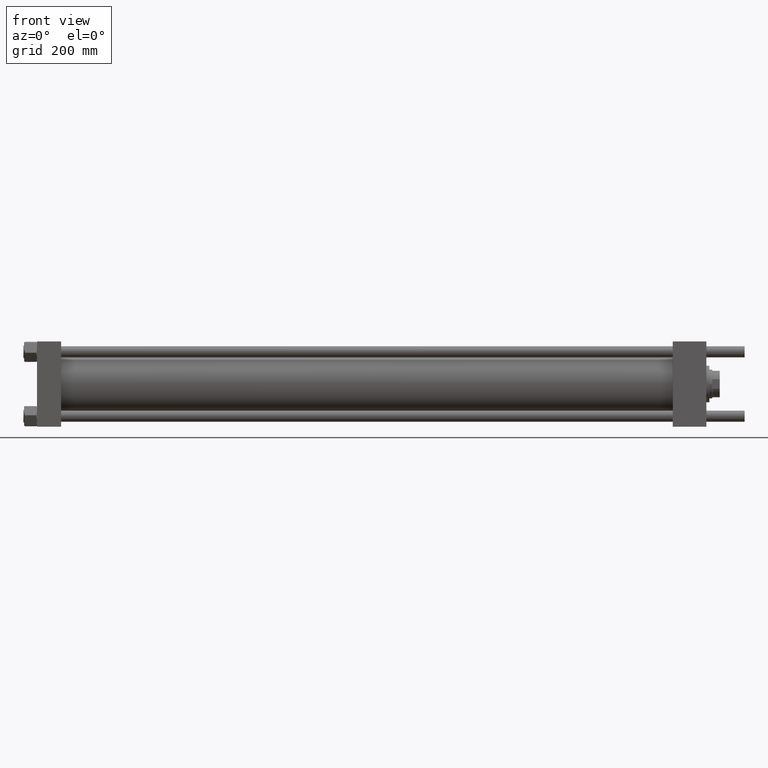
[diagram: clean part render]
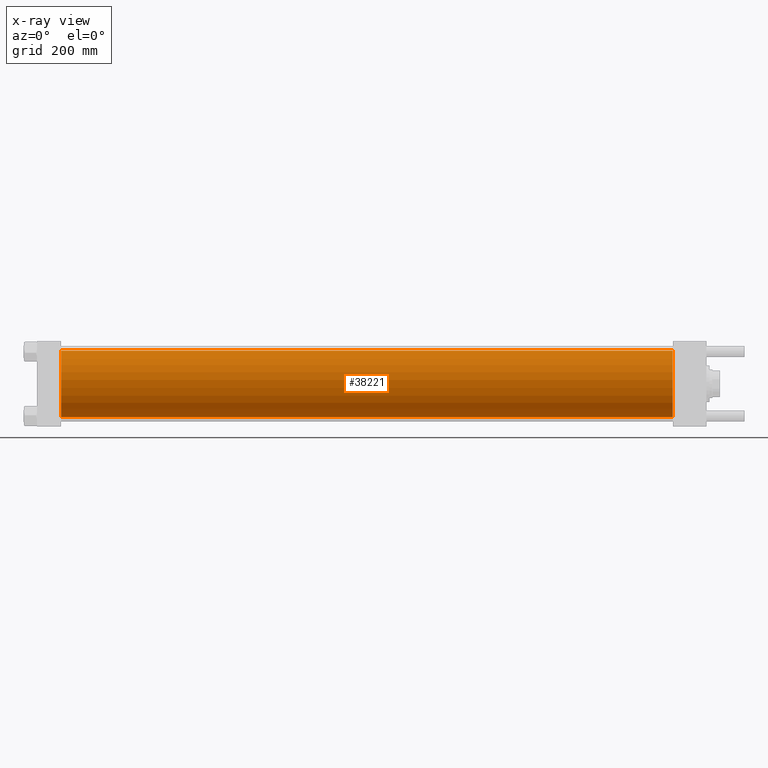
[diagram: x-ray — body ghosted, one internal face saturated and labeled with its STEP entity id]
A machine part, front view, then the same camera in x-ray: the body is ghosted and one INTERNAL B-rep face — a face not visible from any outside direction — is saturated and labeled: STEP entity #38221.
In plain terms, the highlighted cylindrical surface (edge-blend (fillet) strip) has radius 80 mm, axis along (-1, -0, -0).
Its self-contained STEP definition (entity closure, byte-faithful):
#784 = DIRECTION ( 'NONE',  ( -1.000000000000000000, -0.000000000000000000, -0.000000000000000000 ) ) ;
#1503 = ORIENTED_EDGE ( 'NONE', *, *, #21273, .F. ) ;
#1624 = AXIS2_PLACEMENT_3D ( 'NONE', #18889, #54190, #14540 ) ;
#8583 = ORIENTED_EDGE ( 'NONE', *, *, #13088, .F. ) ;
#10968 = EDGE_CURVE ( 'NONE', #39233, #15771, #19294, .T. ) ;
#12043 = VERTEX_POINT ( 'NONE', #34629 ) ;
#12673 = LINE ( 'NONE', #25718, #15112 ) ;
#13088 = EDGE_CURVE ( 'NONE', #50898, #12043, #12673, .T. ) ;
#13495 = CIRCLE ( 'NONE', #56011, 80.00000000000000000 ) ;
#14540 = DIRECTION ( 'NONE',  ( 0.000000000000000000, 0.000000000000000000, -1.000000000000000000 ) ) ;
#15112 = VECTOR ( 'NONE', #43366, 1000.000000000000000 ) ;
#15771 = VERTEX_POINT ( 'NONE', #49911 ) ;
#17698 = DIRECTION ( 'NONE',  ( 0.000000000000000000, 0.000000000000000000, -1.000000000000000000 ) ) ;
#18889 = CARTESIAN_POINT ( 'NONE',  ( 1530.000000000000000, -2.602085213965210642E-15, 0.000000000000000000 ) ) ;
#19294 = LINE ( 'NONE', #28564, #43844 ) ;
#21273 = EDGE_CURVE ( 'NONE', #12043, #15771, #13495, .T. ) ;
#22035 = CARTESIAN_POINT ( 'NONE',  ( 58.00000000000000000, -2.602085213965210642E-15, 0.000000000000000000 ) ) ;
#25718 = CARTESIAN_POINT ( 'NONE',  ( 1530.000000000000000, -2.602085213965210642E-15, 80.00000000000000000 ) ) ;
#27182 = DIRECTION ( 'NONE',  ( 0.000000000000000000, 0.000000000000000000, 1.000000000000000000 ) ) ;
#27929 = CARTESIAN_POINT ( 'NONE',  ( 1530.000000000000000, 7.195089179213615410E-15, -80.00000000000000000 ) ) ;
#28564 = CARTESIAN_POINT ( 'NONE',  ( 1530.000000000000000, 7.195089179213615410E-15, -80.00000000000000000 ) ) ;
#31499 = EDGE_CURVE ( 'NONE', #50898, #39233, #34912, .T. ) ;
#31901 = CARTESIAN_POINT ( 'NONE',  ( 1530.000000000000000, -2.602085213965210642E-15, 80.00000000000000000 ) ) ;
#34150 = FACE_OUTER_BOUND ( 'NONE', #44138, .T. ) ;
#34629 = CARTESIAN_POINT ( 'NONE',  ( 58.00000000000000000, -2.602085213965210642E-15, 80.00000000000000000 ) ) ;
#34912 = CIRCLE ( 'NONE', #1624, 80.00000000000000000 ) ;
#38221 = ADVANCED_FACE ( 'NONE', ( #34150 ), #43401, .F. ) ;
#39233 = VERTEX_POINT ( 'NONE', #27929 ) ;
#39697 = DIRECTION ( 'NONE',  ( 1.000000000000000000, 0.000000000000000000, 0.000000000000000000 ) ) ;
#40186 = ORIENTED_EDGE ( 'NONE', *, *, #10968, .T. ) ;
#43366 = DIRECTION ( 'NONE',  ( -1.000000000000000000, -0.000000000000000000, -0.000000000000000000 ) ) ;
#43401 = CYLINDRICAL_SURFACE ( 'NONE', #46220, 80.00000000000000000 ) ;
#43844 = VECTOR ( 'NONE', #784, 1000.000000000000000 ) ;
#44138 = EDGE_LOOP ( 'NONE', ( #50434, #40186, #1503, #8583 ) ) ;
#44828 = DIRECTION ( 'NONE',  ( -1.000000000000000000, -0.000000000000000000, -0.000000000000000000 ) ) ;
#46220 = AXIS2_PLACEMENT_3D ( 'NONE', #56714, #44828, #27182 ) ;
#49911 = CARTESIAN_POINT ( 'NONE',  ( 58.00000000000000000, 7.195089179213615410E-15, -80.00000000000000000 ) ) ;
#50434 = ORIENTED_EDGE ( 'NONE', *, *, #31499, .T. ) ;
#50898 = VERTEX_POINT ( 'NONE', #31901 ) ;
#54190 = DIRECTION ( 'NONE',  ( 1.000000000000000000, 0.000000000000000000, 0.000000000000000000 ) ) ;
#56011 = AXIS2_PLACEMENT_3D ( 'NONE', #22035, #39697, #17698 ) ;
#56714 = CARTESIAN_POINT ( 'NONE',  ( 1530.000000000000000, -2.602085213965210642E-15, 0.000000000000000000 ) ) ;